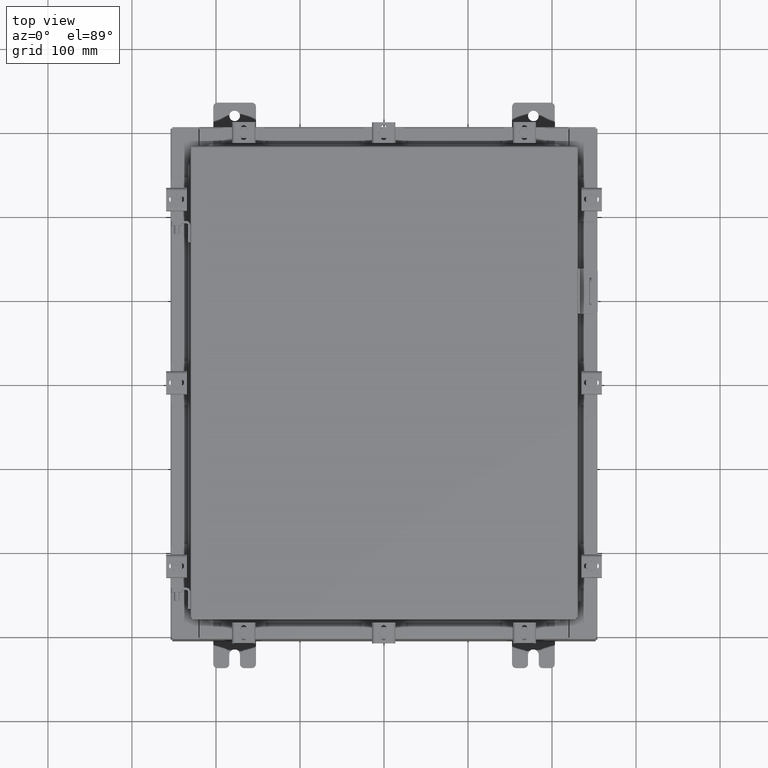
[diagram: clean part render]
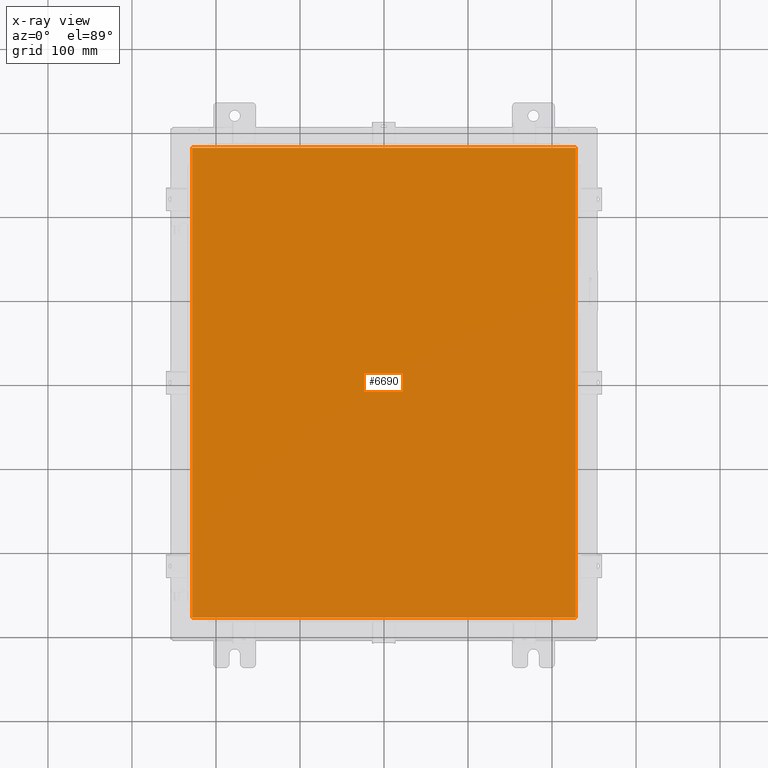
[diagram: x-ray — body ghosted, one internal face saturated and labeled with its STEP entity id]
A machine part, top view, then the same camera in x-ray: the body is ghosted and one INTERNAL B-rep face — a face not visible from any outside direction — is saturated and labeled: STEP entity #6690.
In plain terms, the highlighted planar face has unit normal (0, 0, -1).
Its self-contained STEP definition (entity closure, byte-faithful):
#535 = DIRECTION ( 'NONE',  ( 0.0000000000000000000, -1.000000000000000000, 0.0000000000000000000 ) ) ;
#548 = LINE ( 'NONE', #610, #13868 ) ;
#610 = CARTESIAN_POINT ( 'NONE',  ( -8.990299999999999500, 11.00630000000000100, -0.07470000000000019700 ) ) ;
#849 = CARTESIAN_POINT ( 'NONE',  ( 8.990299999999997700, 11.00630000000000000, -0.07470000000000000300 ) ) ;
#1276 = EDGE_CURVE ( 'NONE', #14095, #6182, #21823, .T. ) ;
#1546 = ORIENTED_EDGE ( 'NONE', *, *, #2003, .F. ) ;
#2003 = EDGE_CURVE ( 'NONE', #2071, #10801, #548, .T. ) ;
#2071 = VERTEX_POINT ( 'NONE', #19381 ) ;
#2319 = PLANE ( 'NONE',  #18227 ) ;
#3336 = ORIENTED_EDGE ( 'NONE', *, *, #1276, .F. ) ;
#3363 = DIRECTION ( 'NONE',  ( -1.000000000000000000, -0.0000000000000000000, -0.0000000000000000000 ) ) ;
#3387 = CARTESIAN_POINT ( 'NONE',  ( -8.990299999999999500, -11.00630000000000100, -0.07470000000000019700 ) ) ;
#4449 = VECTOR ( 'NONE', #3363, 39.37007874015748100 ) ;
#6182 = VERTEX_POINT ( 'NONE', #849 ) ;
#6690 = ADVANCED_FACE ( 'NONE', ( #11640 ), #2319, .T. ) ;
#8064 = ORIENTED_EDGE ( 'NONE', *, *, #10136, .F. ) ;
#8789 = ORIENTED_EDGE ( 'NONE', *, *, #9412, .F. ) ;
#9287 = DIRECTION ( 'NONE',  ( -1.000000000000000000, 0.0000000000000000000, -0.0000000000000000000 ) ) ;
#9412 = EDGE_CURVE ( 'NONE', #10801, #14095, #10971, .T. ) ;
#10136 = EDGE_CURVE ( 'NONE', #6182, #2071, #18354, .T. ) ;
#10339 = CARTESIAN_POINT ( 'NONE',  ( -8.990299999999997700, -11.00630000000000100, -0.07470000000000000300 ) ) ;
#10411 = VECTOR ( 'NONE', #15593, 39.37007874015748100 ) ;
#10801 = VERTEX_POINT ( 'NONE', #10339 ) ;
#10971 = LINE ( 'NONE', #3387, #10411 ) ;
#11227 = EDGE_LOOP ( 'NONE', ( #3336, #8789, #1546, #8064 ) ) ;
#11640 = FACE_OUTER_BOUND ( 'NONE', #11227, .T. ) ;
#12055 = CARTESIAN_POINT ( 'NONE',  ( 8.990299999999999500, 11.00630000000000000, -0.07470000000000019700 ) ) ;
#13868 = VECTOR ( 'NONE', #535, 39.37007874015748100 ) ;
#14095 = VERTEX_POINT ( 'NONE', #22159 ) ;
#15593 = DIRECTION ( 'NONE',  ( 1.000000000000000000, -0.0000000000000000000, -0.0000000000000000000 ) ) ;
#16245 = CARTESIAN_POINT ( 'NONE',  ( 0.0000000000000000000, 0.0000000000000000000, -0.07470000000000000300 ) ) ;
#16483 = DIRECTION ( 'NONE',  ( 0.0000000000000000000, 1.000000000000000000, 0.0000000000000000000 ) ) ;
#17146 = VECTOR ( 'NONE', #16483, 39.37007874015748100 ) ;
#18227 = AXIS2_PLACEMENT_3D ( 'NONE', #16245, #19747, #9287 ) ;
#18354 = LINE ( 'NONE', #12055, #4449 ) ;
#19381 = CARTESIAN_POINT ( 'NONE',  ( -8.990299999999999500, 11.00630000000000000, -0.07470000000000000300 ) ) ;
#19673 = CARTESIAN_POINT ( 'NONE',  ( 8.990299999999999500, -11.00630000000000000, -0.07470000000000073800 ) ) ;
#19747 = DIRECTION ( 'NONE',  ( 0.0000000000000000000, 0.0000000000000000000, -1.000000000000000000 ) ) ;
#21823 = LINE ( 'NONE', #19673, #17146 ) ;
#22159 = CARTESIAN_POINT ( 'NONE',  ( 8.990299999999999500, -11.00630000000000000, -0.07470000000000000300 ) ) ;